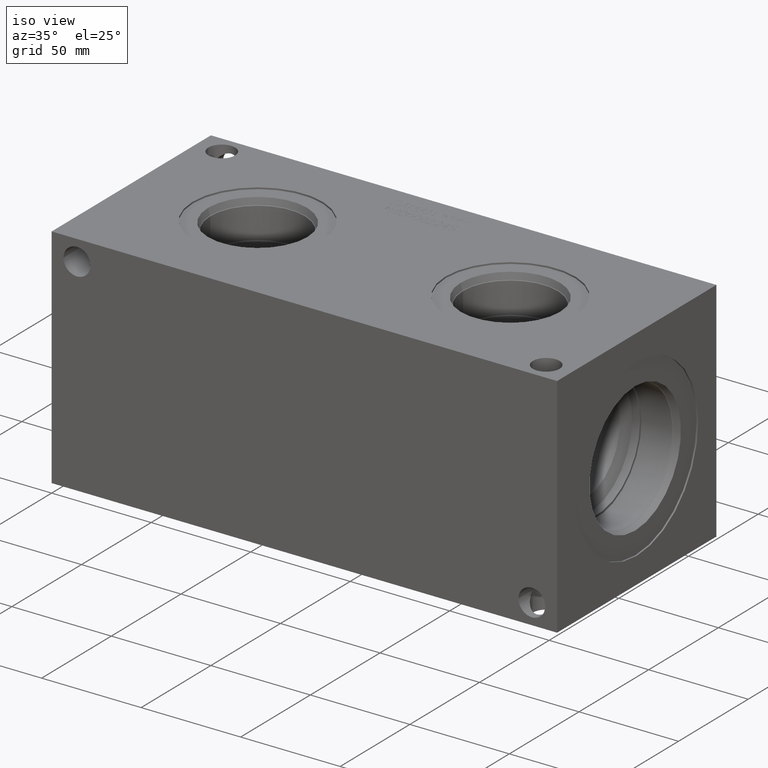
[diagram: clean part render]
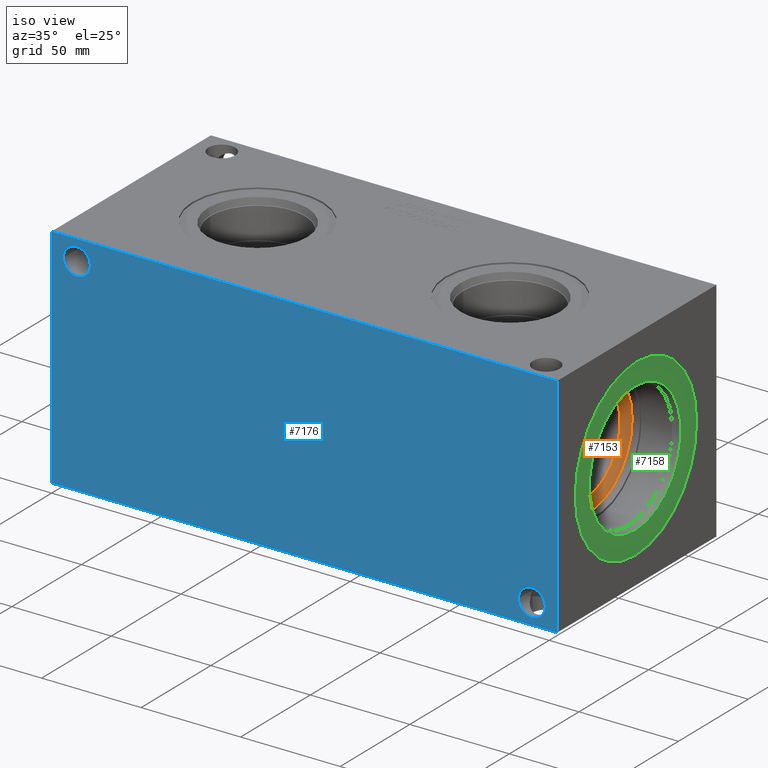
[diagram: same view with three faces highlighted in distinct colors, each labeled with its STEP entity id]
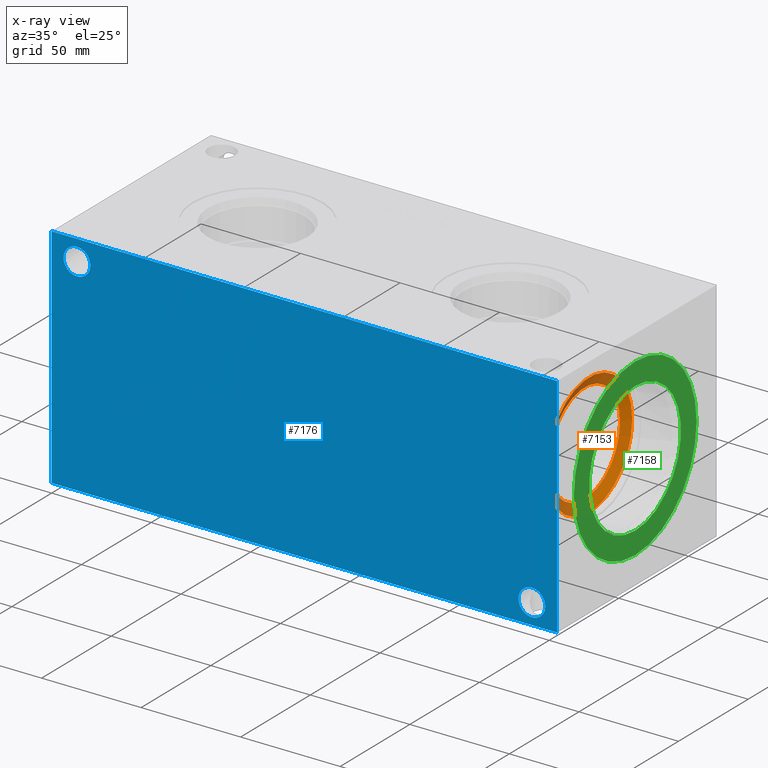
[diagram: x-ray of the same camera — body ghosted, the three highlighted faces saturated]
A machine part, iso view with three faces highlighted in distinct colors.
The next image is the same camera in x-ray (body ghosted, the three faces saturated) — at least one of them is partly hidden behind the body in this view.
Their STEP definitions:

[orange] entity #7153 — the highlighted conical surface has half-angle 66 deg.
#23=CONICAL_SURFACE('',#7495,15.36065,1.15191730631626);
#117=CIRCLE('',#7494,25.4);
#118=CIRCLE('',#7496,30.7213);
#119=CIRCLE('',#7497,30.7213);
#828=FACE_OUTER_BOUND('',#1226,.T.);
#1226=EDGE_LOOP('',(#6154,#6155,#6156,#6157,#6158));
#1940=LINE('',#12156,#2639);
#2639=VECTOR('',#8843,15.36065);
#3283=VERTEX_POINT('',#12149);
#3284=VERTEX_POINT('',#12153);
#3285=VERTEX_POINT('',#12154);
#4253=EDGE_CURVE('',#3283,#3283,#117,.T.);
#4255=EDGE_CURVE('',#3284,#3285,#118,.T.);
#4256=EDGE_CURVE('',#3285,#3283,#1940,.T.);
#4257=EDGE_CURVE('',#3285,#3284,#119,.T.);
#6154=ORIENTED_EDGE('',*,*,#4255,.T.);
#6155=ORIENTED_EDGE('',*,*,#4256,.T.);
#6156=ORIENTED_EDGE('',*,*,#4253,.T.);
#6157=ORIENTED_EDGE('',*,*,#4256,.F.);
#6158=ORIENTED_EDGE('',*,*,#4257,.T.);
#7153=ADVANCED_FACE('',(#828),#23,.F.);
#7494=AXIS2_PLACEMENT_3D('',#12150,#8836,#8837);
#7495=AXIS2_PLACEMENT_3D('',#12152,#8839,#8840);
#7496=AXIS2_PLACEMENT_3D('',#12155,#8841,#8842);
#7497=AXIS2_PLACEMENT_3D('',#12157,#8844,#8845);
#8836=DIRECTION('center_axis',(-1.,0.,0.));
#8837=DIRECTION('ref_axis',(0.,1.,0.));
#8839=DIRECTION('center_axis',(1.,0.,0.));
#8840=DIRECTION('ref_axis',(0.,1.,0.));
#8841=DIRECTION('center_axis',(1.,0.,0.));
#8842=DIRECTION('ref_axis',(0.,1.,0.));
#8843=DIRECTION('',(-0.4067366430758,0.913545457642601,1.11877052057761E-16));
#8844=DIRECTION('center_axis',(1.,0.,0.));
#8845=DIRECTION('ref_axis',(0.,1.,0.));
#12149=CARTESIAN_POINT('',(227.818404596868,31.75,57.15));
#12150=CARTESIAN_POINT('Origin',(227.818404596868,57.15,57.15));
#12152=CARTESIAN_POINT('Origin',(223.348597995015,57.15,57.15));
#12153=CARTESIAN_POINT('',(230.1876,87.8713,57.15));
#12154=CARTESIAN_POINT('',(230.1876,26.4287,57.15));
#12155=CARTESIAN_POINT('Origin',(230.1876,57.15,57.15));
#12156=CARTESIAN_POINT('',(223.348597995015,41.78935,57.15));
#12157=CARTESIAN_POINT('Origin',(230.1876,57.15,57.15));

[blue] entity #7176 — the highlighted planar face has unit normal (0, -1, 0).
#74=CIRCLE('',#7412,6.7437);
#75=CIRCLE('',#7413,6.7437);
#77=CIRCLE('',#7421,6.7437);
#78=CIRCLE('',#7422,6.7437);
#200=FACE_BOUND('',#1259,.T.);
#201=FACE_BOUND('',#1260,.T.);
#851=FACE_OUTER_BOUND('',#1258,.T.);
#1258=EDGE_LOOP('',(#6279,#6280,#6281,#6282));
#1259=EDGE_LOOP('',(#6283,#6284));
#1260=EDGE_LOOP('',(#6285,#6286));
#1531=LINE('',#10997,#2230);
#1957=LINE('',#12267,#2656);
#1962=LINE('',#12276,#2661);
#1963=LINE('',#12278,#2662);
#2230=VECTOR('',#7968,10.);
#2656=VECTOR('',#8972,10.);
#2661=VECTOR('',#8981,10.);
#2662=VECTOR('',#8984,10.);
#2955=VERTEX_POINT('',#10995);
#2956=VERTEX_POINT('',#10996);
#3229=VERTEX_POINT('',#11926);
#3230=VERTEX_POINT('',#11927);
#3234=VERTEX_POINT('',#11942);
#3235=VERTEX_POINT('',#11943);
#3323=VERTEX_POINT('',#12265);
#3325=VERTEX_POINT('',#12274);
#3764=EDGE_CURVE('',#2955,#2956,#1531,.T.);
#4169=EDGE_CURVE('',#3229,#3230,#74,.T.);
#4170=EDGE_CURVE('',#3230,#3229,#75,.T.);
#4178=EDGE_CURVE('',#3234,#3235,#77,.T.);
#4179=EDGE_CURVE('',#3235,#3234,#78,.T.);
#4309=EDGE_CURVE('',#3323,#2955,#1957,.T.);
#4314=EDGE_CURVE('',#3325,#2956,#1962,.T.);
#4315=EDGE_CURVE('',#3323,#3325,#1963,.T.);
#6279=ORIENTED_EDGE('',*,*,#4315,.T.);
#6280=ORIENTED_EDGE('',*,*,#4314,.T.);
#6281=ORIENTED_EDGE('',*,*,#3764,.F.);
#6282=ORIENTED_EDGE('',*,*,#4309,.F.);
#6283=ORIENTED_EDGE('',*,*,#4169,.T.);
#6284=ORIENTED_EDGE('',*,*,#4170,.T.);
#6285=ORIENTED_EDGE('',*,*,#4178,.T.);
#6286=ORIENTED_EDGE('',*,*,#4179,.T.);
#6517=PLANE('',#7555);
#7176=ADVANCED_FACE('',(#851,#200,#201),#6517,.T.);
#7412=AXIS2_PLACEMENT_3D('',#11928,#8645,#8646);
#7413=AXIS2_PLACEMENT_3D('',#11929,#8647,#8648);
#7421=AXIS2_PLACEMENT_3D('',#11944,#8665,#8666);
#7422=AXIS2_PLACEMENT_3D('',#11945,#8667,#8668);
#7555=AXIS2_PLACEMENT_3D('',#12277,#8982,#8983);
#7968=DIRECTION('',(1.,0.,0.));
#8645=DIRECTION('center_axis',(0.,1.,0.));
#8646=DIRECTION('ref_axis',(1.,0.,0.));
#8647=DIRECTION('center_axis',(0.,1.,0.));
#8648=DIRECTION('ref_axis',(1.,0.,0.));
#8665=DIRECTION('center_axis',(0.,1.,0.));
#8666=DIRECTION('ref_axis',(1.,0.,0.));
#8667=DIRECTION('center_axis',(0.,1.,0.));
#8668=DIRECTION('ref_axis',(1.,0.,0.));
#8972=DIRECTION('',(0.,0.,1.));
#8981=DIRECTION('',(0.,0.,1.));
#8982=DIRECTION('center_axis',(0.,-1.,0.));
#8983=DIRECTION('ref_axis',(1.,0.,0.));
#8984=DIRECTION('',(1.,0.,0.));
#10995=CARTESIAN_POINT('',(0.,0.,114.3));
#10996=CARTESIAN_POINT('',(254.,0.,114.3));
#10997=CARTESIAN_POINT('',(0.,0.,114.3));
#11926=CARTESIAN_POINT('',(19.4437,0.,103.9876));
#11927=CARTESIAN_POINT('',(5.9563,0.,103.9876));
#11928=CARTESIAN_POINT('Origin',(12.7,0.,103.9876));
#11929=CARTESIAN_POINT('Origin',(12.7,0.,103.9876));
#11942=CARTESIAN_POINT('',(248.0437,0.,10.3124));
#11943=CARTESIAN_POINT('',(234.5563,0.,10.3124));
#11944=CARTESIAN_POINT('Origin',(241.3,0.,10.3124));
#11945=CARTESIAN_POINT('Origin',(241.3,0.,10.3124));
#12265=CARTESIAN_POINT('',(0.,0.,0.));
#12267=CARTESIAN_POINT('',(0.,0.,0.));
#12274=CARTESIAN_POINT('',(254.,0.,0.));
#12276=CARTESIAN_POINT('',(254.,0.,0.));
#12277=CARTESIAN_POINT('Origin',(0.,0.,0.));
#12278=CARTESIAN_POINT('',(0.,0.,0.));

[green] entity #7158 — the highlighted planar face has unit normal (-1, 0, 0).
#127=CIRCLE('',#7509,44.069);
#128=CIRCLE('',#7510,44.069);
#129=CIRCLE('',#7512,32.8549);
#130=CIRCLE('',#7513,32.8549);
#192=FACE_BOUND('',#1233,.T.);
#833=FACE_OUTER_BOUND('',#1232,.T.);
#1232=EDGE_LOOP('',(#6179,#6180));
#1233=EDGE_LOOP('',(#6181,#6182));
#3293=VERTEX_POINT('',#12178);
#3294=VERTEX_POINT('',#12180);
#3295=VERTEX_POINT('',#12184);
#3296=VERTEX_POINT('',#12185);
#4268=EDGE_CURVE('',#3293,#3294,#127,.T.);
#4269=EDGE_CURVE('',#3294,#3293,#128,.T.);
#4270=EDGE_CURVE('',#3295,#3296,#129,.T.);
#4271=EDGE_CURVE('',#3296,#3295,#130,.T.);
#6179=ORIENTED_EDGE('',*,*,#4269,.F.);
#6180=ORIENTED_EDGE('',*,*,#4268,.F.);
#6181=ORIENTED_EDGE('',*,*,#4270,.T.);
#6182=ORIENTED_EDGE('',*,*,#4271,.T.);
#6511=PLANE('',#7511);
#7158=ADVANCED_FACE('',(#833,#192),#6511,.F.);
#7509=AXIS2_PLACEMENT_3D('',#12181,#8871,#8872);
#7510=AXIS2_PLACEMENT_3D('',#12182,#8873,#8874);
#7511=AXIS2_PLACEMENT_3D('',#12183,#8875,#8876);
#7512=AXIS2_PLACEMENT_3D('',#12186,#8877,#8878);
#7513=AXIS2_PLACEMENT_3D('',#12187,#8879,#8880);
#8871=DIRECTION('center_axis',(-1.,0.,0.));
#8872=DIRECTION('ref_axis',(0.,0.,1.));
#8873=DIRECTION('center_axis',(-1.,0.,0.));
#8874=DIRECTION('ref_axis',(0.,0.,1.));
#8875=DIRECTION('center_axis',(-1.,0.,0.));
#8876=DIRECTION('ref_axis',(0.,0.,1.));
#8877=DIRECTION('center_axis',(-1.,0.,0.));
#8878=DIRECTION('ref_axis',(0.,0.,1.));
#8879=DIRECTION('center_axis',(-1.,0.,0.));
#8880=DIRECTION('ref_axis',(0.,0.,1.));
#12178=CARTESIAN_POINT('',(253.2126,57.15,101.219));
#12180=CARTESIAN_POINT('',(253.2126,57.15,13.081));
#12181=CARTESIAN_POINT('Origin',(253.2126,57.15,57.15));
#12182=CARTESIAN_POINT('Origin',(253.2126,57.15,57.15));
#12183=CARTESIAN_POINT('Origin',(253.2126,57.15,24.2951));
#12184=CARTESIAN_POINT('',(253.2126,57.15,24.2951));
#12185=CARTESIAN_POINT('',(253.2126,57.15,90.0049));
#12186=CARTESIAN_POINT('Origin',(253.2126,57.15,57.15));
#12187=CARTESIAN_POINT('Origin',(253.2126,57.15,57.15));